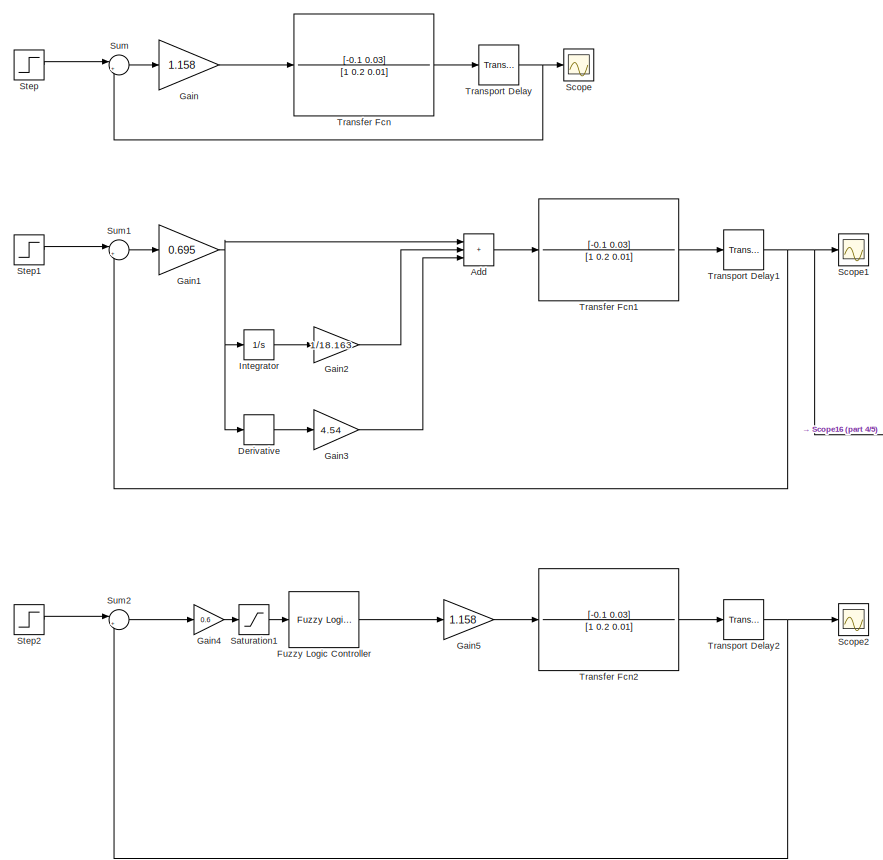
[diagram: root canvas - part 1/5, top center region]
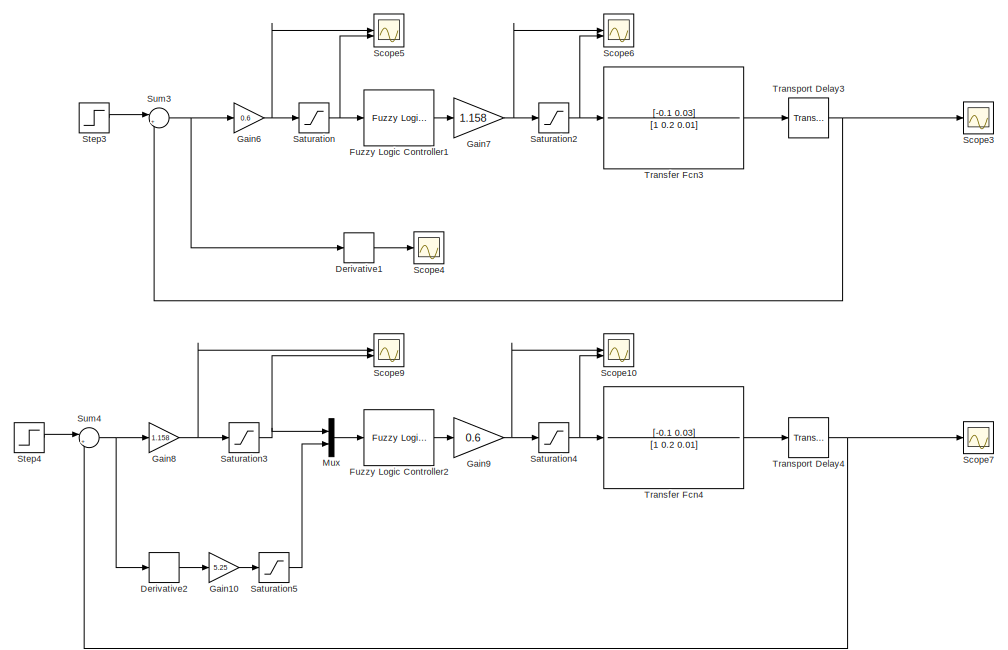
[diagram: root canvas - part 2/5, central region]
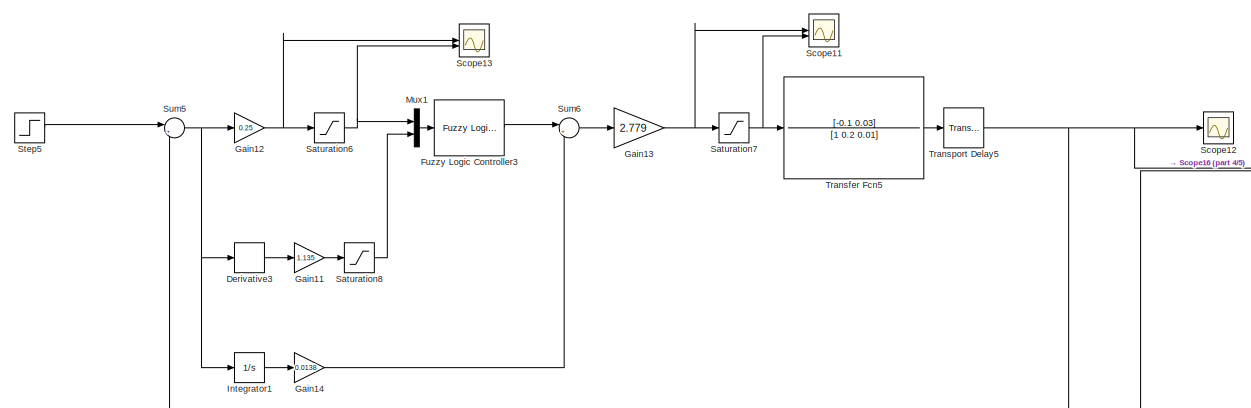
[diagram: root canvas - part 3/5, full width, bottom band]
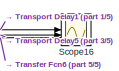
[diagram: root canvas - part 4/5, bottom right region]
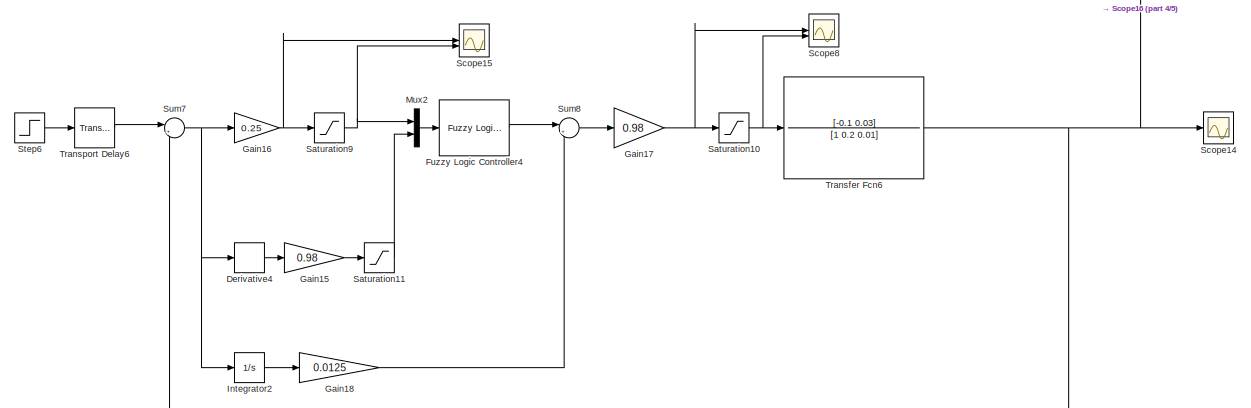
[diagram: root canvas - part 5/5, full width, bottom band]
MODEL slx_9b309f782cc3
KIND model
CONFIG AbsTol = auto
CONFIG EnableMultiTasking = off
CONFIG FixedStep = 0.1
CONFIG MaxStep = auto
CONFIG MinStep = auto
CONFIG RelTol = 1e-3
CONFIG SampleTimeConstraint = Unconstrained
CONFIG SolverName = FixedStepAuto
CONFIG StartTime = 0.0
CONFIG StopTime = 1000.0
BLOCK [Sum] Add
  IconShape = rectangular
  Inputs = +++
BLOCK [Derivative] Derivative
BLOCK [Derivative] Derivative1
BLOCK [Derivative] Derivative2
BLOCK [Derivative] Derivative3
BLOCK [Derivative] Derivative4
BLOCK [Reference] Fuzzy Logic Controller  REF=fuzblock/Fuzzy Logic   (lib defined in mdl_858b3b3e7478)
Controller
  SourceBlock = fuzblock/Fuzzy Logic \nController
  SourceType = Fuzzy Inference System
BLOCK [Reference] Fuzzy Logic Controller1  REF=fuzblock/Fuzzy Logic   (lib defined in mdl_858b3b3e7478)
Controller
  SourceBlock = fuzblock/Fuzzy Logic \nController
  SourceType = Fuzzy Inference System
BLOCK [Reference] Fuzzy Logic Controller2  REF=fuzblock/Fuzzy Logic   (lib defined in mdl_858b3b3e7478)
Controller
  SourceBlock = fuzblock/Fuzzy Logic \nController
  SourceType = Fuzzy Inference System
BLOCK [Reference] Fuzzy Logic Controller3  REF=fuzblock/Fuzzy Logic   (lib defined in mdl_858b3b3e7478)
Controller
  SourceBlock = fuzblock/Fuzzy Logic \nController
  SourceType = Fuzzy Inference System
BLOCK [Reference] Fuzzy Logic Controller4  REF=fuzblock/Fuzzy Logic   (lib defined in mdl_858b3b3e7478)
Controller
  SourceBlock = fuzblock/Fuzzy Logic \nController
  SourceType = Fuzzy Inference System
BLOCK [Gain] Gain
  Gain = 1.158
BLOCK [Gain] Gain1
  Gain = 0.695
BLOCK [Gain] Gain10
  Gain = 5.25
BLOCK [Gain] Gain11
  Gain = 1.135
BLOCK [Gain] Gain12
  Gain = 0.25
BLOCK [Gain] Gain13
  Gain = 2.779
BLOCK [Gain] Gain14
  Gain = 0.0138
BLOCK [Gain] Gain15
  Gain = 0.98
BLOCK [Gain] Gain16
  Gain = 0.25
BLOCK [Gain] Gain17
  Gain = 0.98
BLOCK [Gain] Gain18
  Gain = 0.0125
BLOCK [Gain] Gain2
  Gain = 1/18.163
BLOCK [Gain] Gain3
  Gain = 4.54
BLOCK [Gain] Gain4
  Gain = 0.6
BLOCK [Gain] Gain5
  Gain = 1.158
BLOCK [Gain] Gain6
  Gain = 0.6
BLOCK [Gain] Gain7
  Gain = 1.158
BLOCK [Gain] Gain8
  Gain = 1.158
BLOCK [Gain] Gain9
  Gain = 0.6
BLOCK [Integrator] Integrator
BLOCK [Integrator] Integrator1
BLOCK [Integrator] Integrator2
BLOCK [Mux] Mux
  DisplayOption = bar
  Inputs = 2
BLOCK [Mux] Mux1
  DisplayOption = bar
  Inputs = 2
BLOCK [Mux] Mux2
  DisplayOption = bar
  Inputs = 2
BLOCK [Saturate] Saturation
  LowerLimit = -1
  UpperLimit = 1
BLOCK [Saturate] Saturation1
  LowerLimit = -1
  UpperLimit = 1
BLOCK [Saturate] Saturation10
  LowerLimit = -1.2
  UpperLimit = 1.2
BLOCK [Saturate] Saturation11
  LowerLimit = -1
  UpperLimit = 1
BLOCK [Saturate] Saturation2
  LowerLimit = -1.2
  UpperLimit = 1.2
BLOCK [Saturate] Saturation3
  LowerLimit = -1
  UpperLimit = 1
BLOCK [Saturate] Saturation4
  LowerLimit = -1.2
  UpperLimit = 1.2
BLOCK [Saturate] Saturation5
  LowerLimit = -2
  UpperLimit = 2
BLOCK [Saturate] Saturation6
  LowerLimit = -1
  UpperLimit = 1
BLOCK [Saturate] Saturation7
  LowerLimit = -1.2
  UpperLimit = 1.2
BLOCK [Saturate] Saturation8
  LowerLimit = -2
  UpperLimit = 2
BLOCK [Saturate] Saturation9
  LowerLimit = -1
  UpperLimit = 1
BLOCK [Scope] Scope
  Floating = off
  NumInputPorts = 1
  ScopeSpecificationString = Simulink.scopes.TimeScopeBlockCfg('CurrentConfiguration', extmgr.ConfigurationSet(extmgr.Configuration('Core','General UI',true),extmgr.Configuration('Core','Source UI',true),extmgr.Configuration('Sources','WiredSimulink',true),extmgr.Configuration('Visuals','Time Domain',true,'SerializedDisplays',{struct('MinYLimReal','-4.40661','MaxYLimReal','5.96024','YLabelReal','','MinYLimMag','0.00000','MaxY...<+1692ch>
BLOCK [Scope] Scope1
  Floating = off
  NumInputPorts = 1
  ScopeSpecificationString = Simulink.scopes.TimeScopeBlockCfg('CurrentConfiguration', extmgr.ConfigurationSet(extmgr.Configuration('Core','General UI',true),extmgr.Configuration('Core','Source UI',true),extmgr.Configuration('Sources','WiredSimulink',true,'DataLoggingVariableName','ScopeData1'),extmgr.Configuration('Visuals','Time Domain',true,'SerializedDisplays',{struct('MinYLimReal','-3.42676','MaxYLimReal','3.95765','YLab...<+1706ch>
BLOCK [Scope] Scope10
  Floating = off
  NumInputPorts = 2
  ScopeSpecificationString = Simulink.scopes.TimeScopeBlockCfg('CurrentConfiguration', extmgr.ConfigurationSet(extmgr.Configuration('Core','General UI',true),extmgr.Configuration('Core','Source UI',true),extmgr.Configuration('Sources','WiredSimulink',true,'DataLoggingVariableName','ScopeData7'),extmgr.Configuration('Visuals','Time Domain',true,'SerializedDisplays',{struct('MinYLimReal','-1.96086','MaxYLimReal','2.79121','YLab...<+1378ch>
BLOCK [Scope] Scope11
  Floating = off
  NumInputPorts = 2
  ScopeSpecificationString = Simulink.scopes.TimeScopeBlockCfg('CurrentConfiguration', extmgr.ConfigurationSet(extmgr.Configuration('Core','General UI',true),extmgr.Configuration('Core','Source UI',true),extmgr.Configuration('Sources','WiredSimulink',true,'DataLoggingVariableName','ScopeData11'),extmgr.Configuration('Visuals','Time Domain',true,'SerializedDisplays',{struct('MinYLimReal','-1.96086','MaxYLimReal','2.79121','YLa...<+1379ch>
BLOCK [Scope] Scope12
  Floating = off
  NumInputPorts = 1
  ScopeSpecificationString = Simulink.scopes.TimeScopeBlockCfg('CurrentConfiguration', extmgr.ConfigurationSet(extmgr.Configuration('Core','General UI',true),extmgr.Configuration('Core','Source UI',true),extmgr.Configuration('Sources','WiredSimulink',true,'DataLoggingVariableName','ScopeData12'),extmgr.Configuration('Visuals','Time Domain',true,'SerializedDisplays',{struct('MinYLimReal','-3.52975','MaxYLimReal','4.1257','YLab...<+1703ch>
BLOCK [Scope] Scope13
  Floating = off
  NumInputPorts = 2
  ScopeSpecificationString = Simulink.scopes.TimeScopeBlockCfg('CurrentConfiguration', extmgr.ConfigurationSet(extmgr.Configuration('Core','General UI',true),extmgr.Configuration('Core','Source UI',true),extmgr.Configuration('Sources','WiredSimulink',true,'DataLoggingVariableName','ScopeData13'),extmgr.Configuration('Visuals','Time Domain',true,'SerializedDisplays',{struct('MinYLimReal','-1.70894','MaxYLimReal','2.55103','YLa...<+1378ch>
BLOCK [Scope] Scope14
  Floating = off
  NumInputPorts = 1
  ScopeSpecificationString = Simulink.scopes.TimeScopeBlockCfg('CurrentConfiguration', extmgr.ConfigurationSet(extmgr.Configuration('Core','General UI',true),extmgr.Configuration('Core','Source UI',true),extmgr.Configuration('Sources','WiredSimulink',true,'DataLoggingVariableName','ScopeData9'),extmgr.Configuration('Visuals','Time Domain',true,'SerializedDisplays',{struct('MinYLimReal','-2.64539','MaxYLimReal','2.51609','YLab...<+1703ch>
BLOCK [Scope] Scope15
  Floating = off
  NumInputPorts = 2
  ScopeSpecificationString = Simulink.scopes.TimeScopeBlockCfg('CurrentConfiguration', extmgr.ConfigurationSet(extmgr.Configuration('Core','General UI',true),extmgr.Configuration('Core','Source UI',true),extmgr.Configuration('Sources','WiredSimulink',true,'DataLoggingVariableName','ScopeData14'),extmgr.Configuration('Visuals','Time Domain',true,'SerializedDisplays',{struct('MinYLimReal','-1.70894','MaxYLimReal','2.55103','YLa...<+1378ch>
BLOCK [Scope] Scope16
  Floating = off
  NumInputPorts = 3
  ScopeSpecificationString = Simulink.scopes.TimeScopeBlockCfg('CurrentConfiguration', extmgr.ConfigurationSet(extmgr.Configuration('Core','General UI',true),extmgr.Configuration('Core','Source UI',true),extmgr.Configuration('Sources','WiredSimulink',true,'DataLoggingVariableName','ScopeData16'),extmgr.Configuration('Visuals','Time Domain',true,'SerializedDisplays',{struct('MinYLimReal','-3.52975','MaxYLimReal','4.1257','YLab...<+1438ch>
BLOCK [Scope] Scope2
  Floating = off
  NumInputPorts = 1
  ScopeSpecificationString = Simulink.scopes.TimeScopeBlockCfg('CurrentConfiguration', extmgr.ConfigurationSet(extmgr.Configuration('Core','General UI',true),extmgr.Configuration('Core','Source UI',true),extmgr.Configuration('Sources','WiredSimulink',true,'DataLoggingVariableName','ScopeData2'),extmgr.Configuration('Visuals','Time Domain',true,'SerializedDisplays',{struct('MinYLimReal','-2.52061','MaxYLimReal','2.63436','YLab...<+1706ch>
BLOCK [Scope] Scope3
  Floating = off
  NumInputPorts = 1
  ScopeSpecificationString = Simulink.scopes.TimeScopeBlockCfg('CurrentConfiguration', extmgr.ConfigurationSet(extmgr.Configuration('Core','General UI',true),extmgr.Configuration('Core','Source UI',true),extmgr.Configuration('Sources','WiredSimulink',true,'DataLoggingVariableName','ScopeData3'),extmgr.Configuration('Visuals','Time Domain',true,'SerializedDisplays',{struct('MinYLimReal','-2.52061','MaxYLimReal','2.63436','YLab...<+1706ch>
BLOCK [Scope] Scope4
  Floating = off
  NumInputPorts = 1
  ScopeSpecificationString = Simulink.scopes.TimeScopeBlockCfg('CurrentConfiguration', extmgr.ConfigurationSet(extmgr.Configuration('Core','General UI',true),extmgr.Configuration('Core','Source UI',true),extmgr.Configuration('Sources','WiredSimulink',true,'DataLoggingVariableName','ScopeData4'),extmgr.Configuration('Visuals','Time Domain',true,'SerializedDisplays',{struct('MinYLimReal','-1.58073','MaxYLimReal','1.65201','YLab...<+1418ch>
BLOCK [Scope] Scope5
  Floating = off
  NumInputPorts = 2
  ScopeSpecificationString = Simulink.scopes.TimeScopeBlockCfg('CurrentConfiguration', extmgr.ConfigurationSet(extmgr.Configuration('Core','General UI',true),extmgr.Configuration('Core','Source UI',true),extmgr.Configuration('Sources','WiredSimulink',true,'DataLoggingVariableName','ScopeData5'),extmgr.Configuration('Visuals','Time Domain',true,'SerializedDisplays',{struct('MinYLimReal','-1.70531','MaxYLimReal','2.5474','YLabe...<+1373ch>
BLOCK [Scope] Scope6
  Floating = off
  NumInputPorts = 2
  ScopeSpecificationString = Simulink.scopes.TimeScopeBlockCfg('CurrentConfiguration', extmgr.ConfigurationSet(extmgr.Configuration('Core','General UI',true),extmgr.Configuration('Core','Source UI',true),extmgr.Configuration('Sources','WiredSimulink',true,'DataLoggingVariableName','ScopeData6'),extmgr.Configuration('Visuals','Time Domain',true,'SerializedDisplays',{struct('MinYLimReal','-1.4475','MaxYLimReal','1.4475','YLabel...<+1372ch>
BLOCK [Scope] Scope7
  Floating = off
  NumInputPorts = 1
  ScopeSpecificationString = Simulink.scopes.TimeScopeBlockCfg('CurrentConfiguration', extmgr.ConfigurationSet(extmgr.Configuration('Core','General UI',true),extmgr.Configuration('Core','Source UI',true),extmgr.Configuration('Sources','WiredSimulink',true,'DataLoggingVariableName','ScopeData8'),extmgr.Configuration('Visuals','Time Domain',true,'SerializedDisplays',{struct('MinYLimReal','-1.82949','MaxYLimReal','1.73949','YLab...<+1706ch>
BLOCK [Scope] Scope8
  Floating = off
  NumInputPorts = 2
  ScopeSpecificationString = Simulink.scopes.TimeScopeBlockCfg('CurrentConfiguration', extmgr.ConfigurationSet(extmgr.Configuration('Core','General UI',true),extmgr.Configuration('Core','Source UI',true),extmgr.Configuration('Sources','WiredSimulink',true,'DataLoggingVariableName','ScopeData15'),extmgr.Configuration('Visuals','Time Domain',true,'SerializedDisplays',{struct('MinYLimReal','-2.09601','MaxYLimReal','1.67269','YLa...<+1381ch>
BLOCK [Scope] Scope9
  Floating = off
  NumInputPorts = 2
  ScopeSpecificationString = Simulink.scopes.TimeScopeBlockCfg('CurrentConfiguration', extmgr.ConfigurationSet(extmgr.Configuration('Core','General UI',true),extmgr.Configuration('Core','Source UI',true),extmgr.Configuration('Sources','WiredSimulink',true,'DataLoggingVariableName','ScopeData10'),extmgr.Configuration('Visuals','Time Domain',true,'SerializedDisplays',{struct('MinYLimReal','-1.70894','MaxYLimReal','2.55103','YLa...<+1378ch>
BLOCK [Step] Step
  After = 2
  Before = -2
  SampleTime = 0
  Time = 500
BLOCK [Step] Step1
  After = 2
  Before = -2
  SampleTime = 0
  Time = 500
BLOCK [Step] Step2
  After = 2
  Before = -2
  SampleTime = 0
  Time = 500
BLOCK [Step] Step3
  After = 2
  Before = -2
  SampleTime = 0
  Time = 500
BLOCK [Step] Step4
  After = 2
  Before = -2
  SampleTime = 0
  Time = 500
BLOCK [Step] Step5
  After = 2
  Before = -2
  SampleTime = 0
  Time = 500
BLOCK [Step] Step6
  After = 2
  Before = -2
  SampleTime = 0
  Time = 500
BLOCK [Sum] Sum
  Inputs = |+-
BLOCK [Sum] Sum1
  Inputs = |+-
BLOCK [Sum] Sum2
  Inputs = |+-
BLOCK [Sum] Sum3
  Inputs = |+-
BLOCK [Sum] Sum4
  Inputs = |+-
BLOCK [Sum] Sum5
  Inputs = |+-
BLOCK [Sum] Sum6
  Inputs = |++
BLOCK [Sum] Sum7
  Inputs = |+-
BLOCK [Sum] Sum8
  Inputs = |++
BLOCK [TransferFcn] Transfer Fcn
  Denominator = [1 0.2 0.01]
  Numerator = [-0.1 0.03]
BLOCK [TransferFcn] Transfer Fcn1
  Denominator = [1 0.2 0.01]
  Numerator = [-0.1 0.03]
BLOCK [TransferFcn] Transfer Fcn2
  Denominator = [1 0.2 0.01]
  Numerator = [-0.1 0.03]
BLOCK [TransferFcn] Transfer Fcn3
  Denominator = [1 0.2 0.01]
  Numerator = [-0.1 0.03]
BLOCK [TransferFcn] Transfer Fcn4
  Denominator = [1 0.2 0.01]
  Numerator = [-0.1 0.03]
BLOCK [TransferFcn] Transfer Fcn5
  Denominator = [1 0.2 0.01]
  Numerator = [-0.1 0.03]
BLOCK [TransferFcn] Transfer Fcn6
  Denominator = [1 0.2 0.01]
  Numerator = [-0.1 0.03]
BLOCK [TransportDelay] Transport Delay
  DelayTime = 3
BLOCK [TransportDelay] Transport Delay1
  DelayTime = 3
BLOCK [TransportDelay] Transport Delay2
  DelayTime = 3
BLOCK [TransportDelay] Transport Delay3
  DelayTime = 3
BLOCK [TransportDelay] Transport Delay4
  DelayTime = 3
BLOCK [TransportDelay] Transport Delay5
  DelayTime = 3
BLOCK [TransportDelay] Transport Delay6
  DelayTime = 3
LINE Add:1 -> Transfer Fcn1:1
LINE Derivative1:1 -> Scope4:1
LINE Derivative2:1 -> Gain10:1
LINE Derivative3:1 -> Gain11:1
LINE Derivative4:1 -> Gain15:1
LINE Derivative:1 -> Gain3:1
LINE Fuzzy Logic Controller1:1 -> Gain7:1
LINE Fuzzy Logic Controller2:1 -> Gain9:1
LINE Fuzzy Logic Controller3:1 -> Sum6:1
LINE Fuzzy Logic Controller4:1 -> Sum8:1
LINE Fuzzy Logic Controller:1 -> Gain5:1
LINE Gain10:1 -> Saturation5:1
LINE Gain11:1 -> Saturation8:1
NET Gain12:1 -> Saturation6:1, Scope13:1
NET Gain13:1 -> Saturation7:1, Scope11:1
LINE Gain14:1 -> Sum6:2
LINE Gain15:1 -> Saturation11:1
NET Gain16:1 -> Saturation9:1, Scope15:1
NET Gain17:1 -> Saturation10:1, Scope8:1
LINE Gain18:1 -> Sum8:2
NET Gain1:1 -> Add:1, Derivative:1, Integrator:1
LINE Gain2:1 -> Add:2
LINE Gain3:1 -> Add:3
LINE Gain4:1 -> Saturation1:1
LINE Gain5:1 -> Transfer Fcn2:1
NET Gain6:1 -> Saturation:1, Scope5:1
NET Gain7:1 -> Saturation2:1, Scope6:1
NET Gain8:1 -> Saturation3:1, Scope9:1
NET Gain9:1 -> Saturation4:1, Scope10:1
LINE Gain:1 -> Transfer Fcn:1
LINE Integrator1:1 -> Gain14:1
LINE Integrator2:1 -> Gain18:1
LINE Integrator:1 -> Gain2:1
LINE Mux1:1 -> Fuzzy Logic Controller3:1
LINE Mux2:1 -> Fuzzy Logic Controller4:1
LINE Mux:1 -> Fuzzy Logic Controller2:1
NET Saturation10:1 -> Scope8:2, Transfer Fcn6:1
LINE Saturation11:1 -> Mux2:2
LINE Saturation1:1 -> Fuzzy Logic Controller:1
NET Saturation2:1 -> Scope6:2, Transfer Fcn3:1
NET Saturation3:1 -> Mux:1, Scope9:2
NET Saturation4:1 -> Scope10:2, Transfer Fcn4:1
LINE Saturation5:1 -> Mux:2
NET Saturation6:1 -> Mux1:1, Scope13:2
NET Saturation7:1 -> Scope11:2, Transfer Fcn5:1
LINE Saturation8:1 -> Mux1:2
NET Saturation9:1 -> Mux2:1, Scope15:2
NET Saturation:1 -> Fuzzy Logic Controller1:1, Scope5:2
LINE Step1:1 -> Sum1:1
LINE Step2:1 -> Sum2:1
LINE Step3:1 -> Sum3:1
LINE Step4:1 -> Sum4:1
LINE Step5:1 -> Sum5:1
LINE Step6:1 -> Transport Delay6:1
LINE Step:1 -> Sum:1
LINE Sum1:1 -> Gain1:1
LINE Sum2:1 -> Gain4:1
NET Sum3:1 -> Derivative1:1, Gain6:1
NET Sum4:1 -> Derivative2:1, Gain8:1
NET Sum5:1 -> Derivative3:1, Gain12:1, Integrator1:1
LINE Sum6:1 -> Gain13:1
NET Sum7:1 -> Derivative4:1, Gain16:1, Integrator2:1
LINE Sum8:1 -> Gain17:1
LINE Sum:1 -> Gain:1
LINE Transfer Fcn1:1 -> Transport Delay1:1
LINE Transfer Fcn2:1 -> Transport Delay2:1
LINE Transfer Fcn3:1 -> Transport Delay3:1
LINE Transfer Fcn4:1 -> Transport Delay4:1
LINE Transfer Fcn5:1 -> Transport Delay5:1
NET Transfer Fcn6:1 -> Scope14:1, Scope16:3, Sum7:2
LINE Transfer Fcn:1 -> Transport Delay:1
NET Transport Delay1:1 -> Scope16:1, Scope1:1, Sum1:2
NET Transport Delay2:1 -> Scope2:1, Sum2:2
NET Transport Delay3:1 -> Scope3:1, Sum3:2
NET Transport Delay4:1 -> Scope7:1, Sum4:2
NET Transport Delay5:1 -> Scope12:1, Scope16:2, Sum5:2
LINE Transport Delay6:1 -> Sum7:1
NET Transport Delay:1 -> Scope:1, Sum:2
note: NET lines group one-source signal fan-out (src -> all destinations, sorted); 1:1 wires keep LINE
